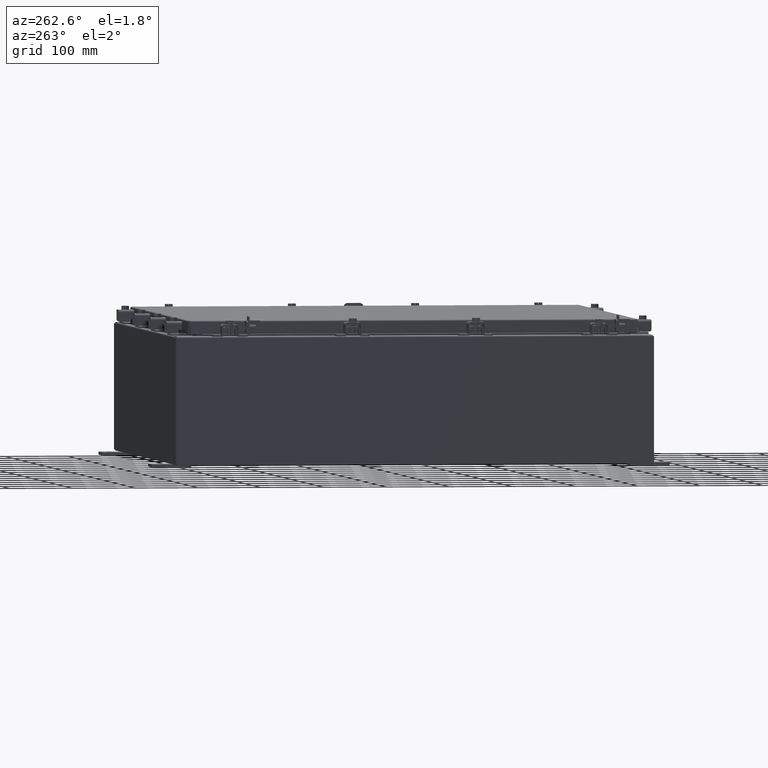
[diagram: clean part render]
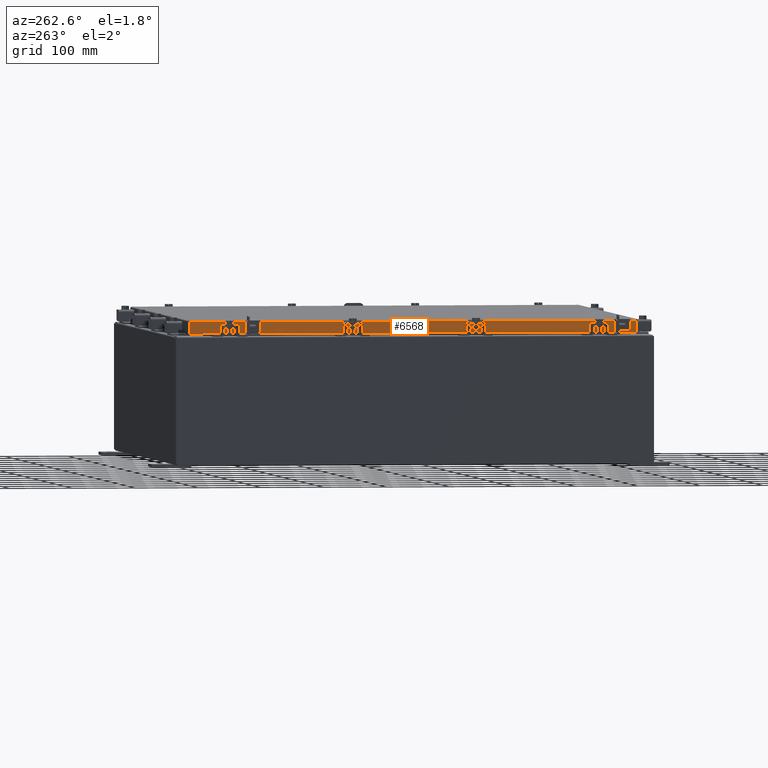
[diagram: same view with one face highlighted and labeled with its STEP entity id]
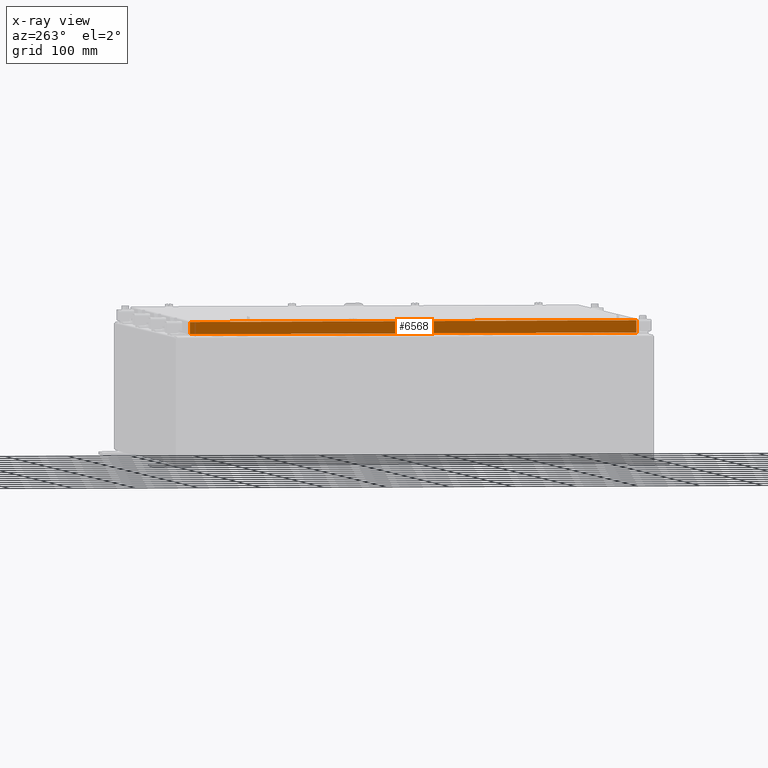
[diagram: x-ray of the same camera — body ghosted, the highlighted face saturated]
A machine part, auxiliary view. The second image highlights one B-rep face of the part: STEP entity #6568.
The next image is the same camera in x-ray: the body ghosted, the highlighted face saturated — about 0% of this face is hidden behind the body in this view.
In plain terms, the highlighted planar face has unit normal (1, 0, -0).
Its self-contained STEP definition (entity closure, byte-faithful):
#327 = ORIENTED_EDGE ( 'NONE', *, *, #11286, .F. ) ;
#672 = CARTESIAN_POINT ( 'NONE',  ( -14.09399999999999900, 14.00515786437626500, -0.08770000000000026400 ) ) ;
#733 = CARTESIAN_POINT ( 'NONE',  ( -14.09400000000000100, -13.25515786437626200, -0.8500000000000010900 ) ) ;
#794 = CARTESIAN_POINT ( 'NONE',  ( -14.09399999999999900, -14.00515786437626900, -0.07470000000000015500 ) ) ;
#2962 = CARTESIAN_POINT ( 'NONE',  ( -14.09400000000000100, -14.09399999999999600, -0.8499999999999999800 ) ) ;
#3981 = VERTEX_POINT ( 'NONE', #15709 ) ;
#4277 = LINE ( 'NONE', #8683, #8643 ) ;
#4402 = VECTOR ( 'NONE', #14285, 39.37007874015748100 ) ;
#4896 = ORIENTED_EDGE ( 'NONE', *, *, #17241, .F. ) ;
#4987 = VERTEX_POINT ( 'NONE', #23157 ) ;
#5518 = VECTOR ( 'NONE', #13917, 39.37007874015748100 ) ;
#6519 = LINE ( 'NONE', #733, #17078 ) ;
#6529 = CARTESIAN_POINT ( 'NONE',  ( -14.09399999999999900, -14.09399999999999900, -0.08770000000000026400 ) ) ;
#6568 = ADVANCED_FACE ( 'NONE', ( #18608 ), #15103, .F. ) ;
#7852 = CARTESIAN_POINT ( 'NONE',  ( -14.09400000000000100, 13.25515786437627400, -0.8500000000000010900 ) ) ;
#8643 = VECTOR ( 'NONE', #16253, 39.37007874015748100 ) ;
#8683 = CARTESIAN_POINT ( 'NONE',  ( -14.09399999999999900, 14.00515786437626900, 1.376851388806788600E-013 ) ) ;
#9220 = LINE ( 'NONE', #6529, #18612 ) ;
#9231 = EDGE_CURVE ( 'NONE', #10692, #11951, #4277, .T. ) ;
#9376 = LINE ( 'NONE', #2962, #4402 ) ;
#9784 = CARTESIAN_POINT ( 'NONE',  ( -14.09400000000000100, -14.09399999999999600, -0.8499999999999999800 ) ) ;
#10456 = AXIS2_PLACEMENT_3D ( 'NONE', #11329, #22577, #11409 ) ;
#10474 = ORIENTED_EDGE ( 'NONE', *, *, #21753, .F. ) ;
#10580 = CARTESIAN_POINT ( 'NONE',  ( -14.09400000000000100, 14.00515786437627400, -0.8499999999999966500 ) ) ;
#10692 = VERTEX_POINT ( 'NONE', #672 ) ;
#11286 = EDGE_CURVE ( 'NONE', #4987, #22982, #6519, .T. ) ;
#11329 = CARTESIAN_POINT ( 'NONE',  ( -14.09399999999999900, 0.0000000000000000000, 4.043135030623109600E-014 ) ) ;
#11409 = DIRECTION ( 'NONE',  ( -2.818880942772360100E-015, 0.0000000000000000000, -1.000000000000000000 ) ) ;
#11951 = VERTEX_POINT ( 'NONE', #10580 ) ;
#11963 = DIRECTION ( 'NONE',  ( -0.0000000000000000000, 1.000000000000000000, -0.0000000000000000000 ) ) ;
#12173 = EDGE_LOOP ( 'NONE', ( #23451, #19845, #10474, #327, #20677, #4896 ) ) ;
#12588 = VERTEX_POINT ( 'NONE', #23838 ) ;
#13917 = DIRECTION ( 'NONE',  ( -2.818880942772360100E-015, 6.982962677686265900E-015, -1.000000000000000000 ) ) ;
#14285 = DIRECTION ( 'NONE',  ( -0.0000000000000000000, 1.000000000000000000, 1.211441035930299800E-016 ) ) ;
#14757 = EDGE_CURVE ( 'NONE', #12588, #4987, #9376, .T. ) ;
#15103 = PLANE ( 'NONE',  #10456 ) ;
#15709 = CARTESIAN_POINT ( 'NONE',  ( -14.09399999999999900, -14.00515786437626500, -0.08770000000000026400 ) ) ;
#16253 = DIRECTION ( 'NONE',  ( -2.818880942772360100E-015, 6.982962677686265900E-015, -1.000000000000000000 ) ) ;
#17078 = VECTOR ( 'NONE', #11963, 39.37007874015748100 ) ;
#17241 = EDGE_CURVE ( 'NONE', #3981, #12588, #24206, .T. ) ;
#17321 = DIRECTION ( 'NONE',  ( -0.0000000000000000000, 1.000000000000000000, 1.211441035930299800E-016 ) ) ;
#18608 = FACE_OUTER_BOUND ( 'NONE', #12173, .T. ) ;
#18612 = VECTOR ( 'NONE', #19622, 39.37007874015748100 ) ;
#19421 = EDGE_CURVE ( 'NONE', #10692, #3981, #9220, .T. ) ;
#19622 = DIRECTION ( 'NONE',  ( 3.414908049476327800E-031, -1.000000000000000000, -9.308245715024052500E-046 ) ) ;
#19845 = ORIENTED_EDGE ( 'NONE', *, *, #9231, .T. ) ;
#20677 = ORIENTED_EDGE ( 'NONE', *, *, #14757, .F. ) ;
#21753 = EDGE_CURVE ( 'NONE', #22982, #11951, #22724, .T. ) ;
#22139 = VECTOR ( 'NONE', #17321, 39.37007874015748100 ) ;
#22577 = DIRECTION ( 'NONE',  ( 1.000000000000000000, 3.414908049476327800E-031, -2.818880942772360100E-015 ) ) ;
#22724 = LINE ( 'NONE', #9784, #22139 ) ;
#22982 = VERTEX_POINT ( 'NONE', #7852 ) ;
#23157 = CARTESIAN_POINT ( 'NONE',  ( -14.09400000000000100, -13.25515786437625600, -0.8500000000000010900 ) ) ;
#23451 = ORIENTED_EDGE ( 'NONE', *, *, #19421, .F. ) ;
#23838 = CARTESIAN_POINT ( 'NONE',  ( -14.09400000000000100, -14.00515786437626400, -0.8499999999999999800 ) ) ;
#24206 = LINE ( 'NONE', #794, #5518 ) ;